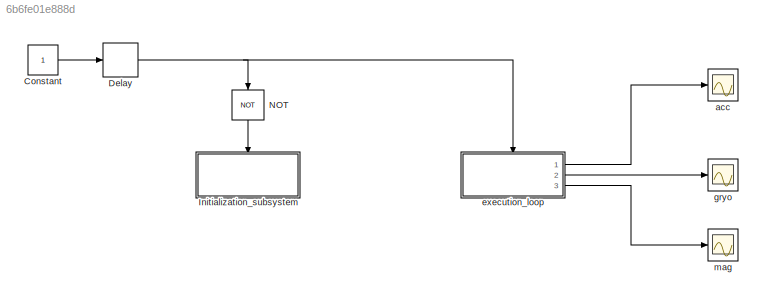
MODEL slx_6b6fe01e888d
KIND model
CONFIG AbsTol = auto
CONFIG EnableMultiTasking = on
CONFIG FixedStep = 0.001
CONFIG MaxStep = auto
CONFIG MinStep = auto
CONFIG RelTol = 1e-3
CONFIG SampleTimeConstraint = Unconstrained
CONFIG Solver = FixedStepDiscrete
CONFIG SolverName = FixedStepDiscrete
CONFIG StartTime = 0.0
CONFIG StopTime = inf
BLOCK [Constant] Constant
BLOCK [Delay] Delay
  DelayLength = 1
  InputPortMap = u0
  Ports = [1, 1]
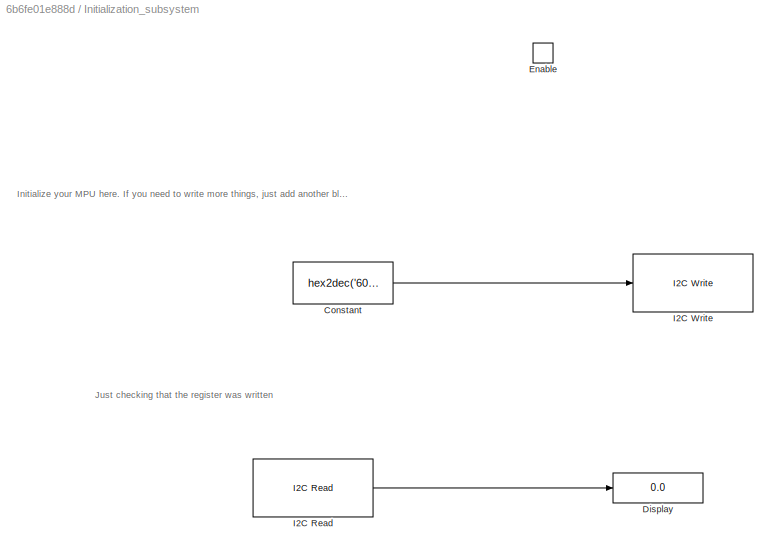
BLOCK [SubSystem] Initialization_subsystem
  Ports = [0, 0, 1]
  RequestExecContextInheritance = off
  TreatAsAtomicUnit = on
BLOCK [Constant] Initialization_subsystem/Constant
  OutDataTypeStr = uint16
  Value = hex2dec('60B0')
BLOCK [Display] Initialization_subsystem/Display
  Decimation = 1
  Ports = [1]
BLOCK [EnablePort] Initialization_subsystem/Enable
  Ports = []
BLOCK [Reference] Initialization_subsystem/I2C Read  REF=arduinolib/I2C Read
  Ports = [0, 1]
  SourceBlock = arduinolib/I2C Read
  SourceProductBaseCode = ARDUINO
  SourceType = I2C Read
BLOCK [Reference] Initialization_subsystem/I2C Write  REF=arduinolib/I2C Write
  Ports = [1]
  SourceBlock = arduinolib/I2C Write
  SourceProductBaseCode = ARDUINO
  SourceType = I2C Write
BLOCK [Logic] NOT
  AllPortsSameDT = off
  NameLocation = left
  Operator = NOT
  OutDataTypeStr = boolean
  Ports = [1, 1]
BLOCK [Scope] acc
  Floating = off
  NumInputPorts = 1
  Ports = [1]
  ScopeSpecificationString = Simulink.scopes.TimeScopeBlockCfg('CurrentConfiguration', extmgr.ConfigurationSet(extmgr.Configuration('Core','General UI',true),extmgr.Configuration('Core','Source UI',true),extmgr.Configuration('Sources','WiredSimulink',true),extmgr.Configuration('Visuals','Time Domain',true),extmgr.Configuration('Tools','Plot Navigation',true),extmgr.Configuration('Tools','Measurements',true)),'Version','2020a'...<+1ch>
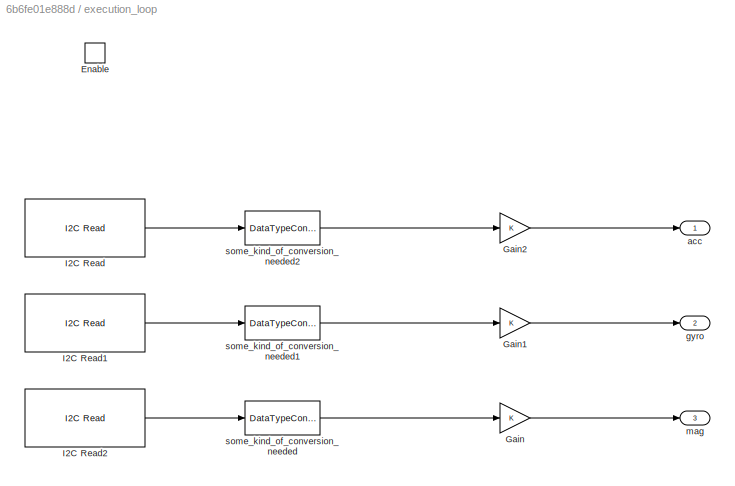
BLOCK [SubSystem] execution_loop
  Ports = [0, 3, 1]
  RequestExecContextInheritance = off
  TreatAsAtomicUnit = on
BLOCK [EnablePort] execution_loop/Enable
  Ports = []
BLOCK [Gain] execution_loop/Gain
BLOCK [Gain] execution_loop/Gain1
BLOCK [Gain] execution_loop/Gain2
BLOCK [Reference] execution_loop/I2C Read  REF=arduinolib/I2C Read
  Ports = [0, 1]
  SourceBlock = arduinolib/I2C Read
  SourceProductBaseCode = ARDUINO
  SourceType = I2C Read
BLOCK [Reference] execution_loop/I2C Read1  REF=arduinolib/I2C Read
  Ports = [0, 1]
  SourceBlock = arduinolib/I2C Read
  SourceProductBaseCode = ARDUINO
  SourceType = I2C Read
BLOCK [Reference] execution_loop/I2C Read2  REF=arduinolib/I2C Read
  Ports = [0, 1]
  SourceBlock = arduinolib/I2C Read
  SourceProductBaseCode = ARDUINO
  SourceType = I2C Read
BLOCK [Outport] execution_loop/acc
BLOCK [Outport] execution_loop/gyro
  Port = 2
BLOCK [Outport] execution_loop/mag
  Port = 3
BLOCK [DataTypeConversion] execution_loop/some_kind_of_conversion_needed
  ConvertRealWorld = Stored Integer (SI)
  OutDataTypeStr = int16
  RndMeth = Floor
  SaturateOnIntegerOverflow = off
BLOCK [DataTypeConversion] execution_loop/some_kind_of_conversion_needed1
  ConvertRealWorld = Stored Integer (SI)
  OutDataTypeStr = int16
  RndMeth = Floor
  SaturateOnIntegerOverflow = off
BLOCK [DataTypeConversion] execution_loop/some_kind_of_conversion_needed2
  ConvertRealWorld = Stored Integer (SI)
  OutDataTypeStr = int16
  RndMeth = Floor
  SaturateOnIntegerOverflow = off
BLOCK [Scope] gryo
  Floating = off
  NumInputPorts = 1
  Ports = [1]
  ScopeSpecificationString = Simulink.scopes.TimeScopeBlockCfg('CurrentConfiguration', extmgr.ConfigurationSet(extmgr.Configuration('Core','General UI',true),extmgr.Configuration('Core','Source UI',true),extmgr.Configuration('Sources','WiredSimulink',true,'DataLoggingVariableName','ScopeData1'),extmgr.Configuration('Visuals','Time Domain',true),extmgr.Configuration('Tools','Plot Navigation',true),extmgr.Configuration('Tools',...<+40ch>
BLOCK [Scope] mag
  Floating = off
  NumInputPorts = 1
  Ports = [1]
  ScopeSpecificationString = Simulink.scopes.TimeScopeBlockCfg('CurrentConfiguration', extmgr.ConfigurationSet(extmgr.Configuration('Core','General UI',true),extmgr.Configuration('Core','Source UI',true),extmgr.Configuration('Sources','WiredSimulink',true,'DataLoggingVariableName','ScopeData2'),extmgr.Configuration('Visuals','Time Domain',true),extmgr.Configuration('Tools','Plot Navigation',true),extmgr.Configuration('Tools',...<+40ch>
ANNOTATION Initialization_subsystem: Initialize your MPU here. If you need to write more things, just add another block
ANNOTATION Initialization_subsystem: Just checking that the register was written
LINE Constant:1 -> Delay:1
NET Delay:1 -> NOT:1, execution_loop:enable
LINE Initialization_subsystem/Constant:1 -> Initialization_subsystem/I2C Write:1
LINE Initialization_subsystem/I2C Read:1 -> Initialization_subsystem/Display:1
LINE NOT:1 -> Initialization_subsystem:enable
LINE execution_loop/Gain1:1 -> execution_loop/gyro:1
LINE execution_loop/Gain2:1 -> execution_loop/acc:1
LINE execution_loop/Gain:1 -> execution_loop/mag:1
LINE execution_loop/I2C Read1:1 -> execution_loop/some_kind_of_conversion_needed1:1
LINE execution_loop/I2C Read2:1 -> execution_loop/some_kind_of_conversion_needed:1
LINE execution_loop/I2C Read:1 -> execution_loop/some_kind_of_conversion_needed2:1
LINE execution_loop/some_kind_of_conversion_needed1:1 -> execution_loop/Gain1:1
LINE execution_loop/some_kind_of_conversion_needed2:1 -> execution_loop/Gain2:1
LINE execution_loop/some_kind_of_conversion_needed:1 -> execution_loop/Gain:1
LINE execution_loop:1 -> acc:1
LINE execution_loop:2 -> gryo:1
LINE execution_loop:3 -> mag:1
note: NET lines group one-source signal fan-out (src -> all destinations, sorted); 1:1 wires keep LINE
